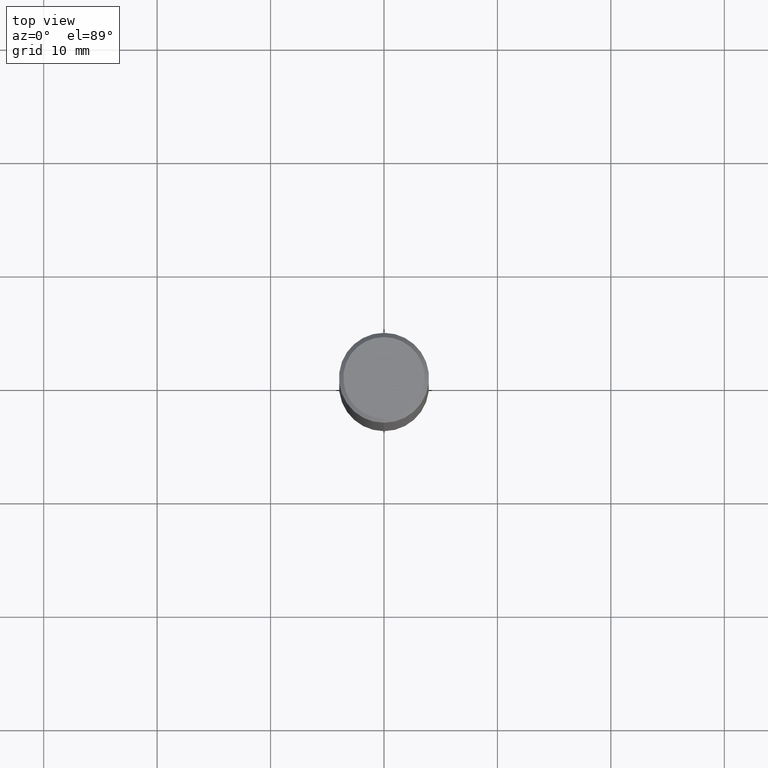
[diagram: clean part render]
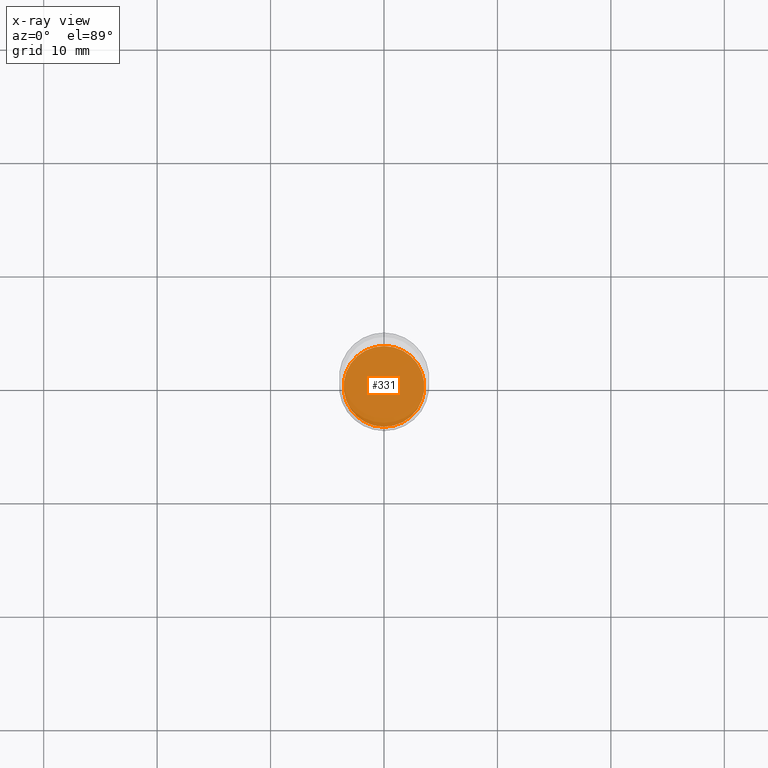
[diagram: x-ray — body ghosted, one internal face saturated and labeled with its STEP entity id]
A machine part, top view, then the same camera in x-ray: the body is ghosted and one INTERNAL B-rep face — a face not visible from any outside direction — is saturated and labeled: STEP entity #331.
In plain terms, the highlighted planar face has unit normal (-0, 0, 1).
Its self-contained STEP definition (entity closure, byte-faithful):
#9 = AXIS2_PLACEMENT_3D ( 'NONE', #266, #76, #321 ) ;
#24 = VERTEX_POINT ( 'NONE', #28 ) ;
#28 = CARTESIAN_POINT ( 'NONE',  ( 9.972467296393428329E-16, 0.1400999999999938961, -1.750000000000000666 ) ) ;
#30 = DIRECTION ( 'NONE',  ( -6.982962677686265922E-15, -1.000000000000000000, 3.491199544438589874E-15 ) ) ;
#66 = PLANE ( 'NONE',  #276 ) ;
#76 = DIRECTION ( 'NONE',  ( -2.445665582166115996E-29, 3.491199544438589874E-15, 1.000000000000000000 ) ) ;
#112 = EDGE_CURVE ( 'NONE', #24, #243, #219, .T. ) ;
#146 = EDGE_CURVE ( 'NONE', #243, #24, #387, .T. ) ;
#157 = CARTESIAN_POINT ( 'NONE',  ( 4.279914768790703134E-29, -6.109599202767532182E-15, -1.750000000000000222 ) ) ;
#192 = DIRECTION ( 'NONE',  ( -2.445665582166115716E-29, 3.491199544438589874E-15, 1.000000000000000000 ) ) ;
#219 = CIRCLE ( 'NONE', #241, 0.1401000000000000023 ) ;
#233 = DIRECTION ( 'NONE',  ( -2.445665582166115996E-29, 3.491199544438589874E-15, 1.000000000000000000 ) ) ;
#240 = ORIENTED_EDGE ( 'NONE', *, *, #146, .F. ) ;
#241 = AXIS2_PLACEMENT_3D ( 'NONE', #157, #233, #422 ) ;
#243 = VERTEX_POINT ( 'NONE', #409 ) ;
#254 = ORIENTED_EDGE ( 'NONE', *, *, #112, .F. ) ;
#266 = CARTESIAN_POINT ( 'NONE',  ( 4.279914768790703134E-29, -6.109599202767532182E-15, -1.750000000000000222 ) ) ;
#276 = AXIS2_PLACEMENT_3D ( 'NONE', #376, #192, #30 ) ;
#321 = DIRECTION ( 'NONE',  ( -6.982962677686265922E-15, -1.000000000000000000, 3.899854380677035588E-15 ) ) ;
#331 = ADVANCED_FACE ( 'NONE', ( #413 ), #66, .F. ) ;
#375 = EDGE_LOOP ( 'NONE', ( #240, #254 ) ) ;
#376 = CARTESIAN_POINT ( 'NONE',  ( 4.279914768790703134E-29, -6.109599202767532182E-15, -1.750000000000000222 ) ) ;
#387 = CIRCLE ( 'NONE', #9, 0.1401000000000000023 ) ;
#409 = CARTESIAN_POINT ( 'NONE',  ( -9.783130711438031058E-16, -0.1401000000000061085, -1.749999999999999556 ) ) ;
#413 = FACE_OUTER_BOUND ( 'NONE', #375, .T. ) ;
#422 = DIRECTION ( 'NONE',  ( -6.982962677686265922E-15, -1.000000000000000000, 3.899854380677035588E-15 ) ) ;